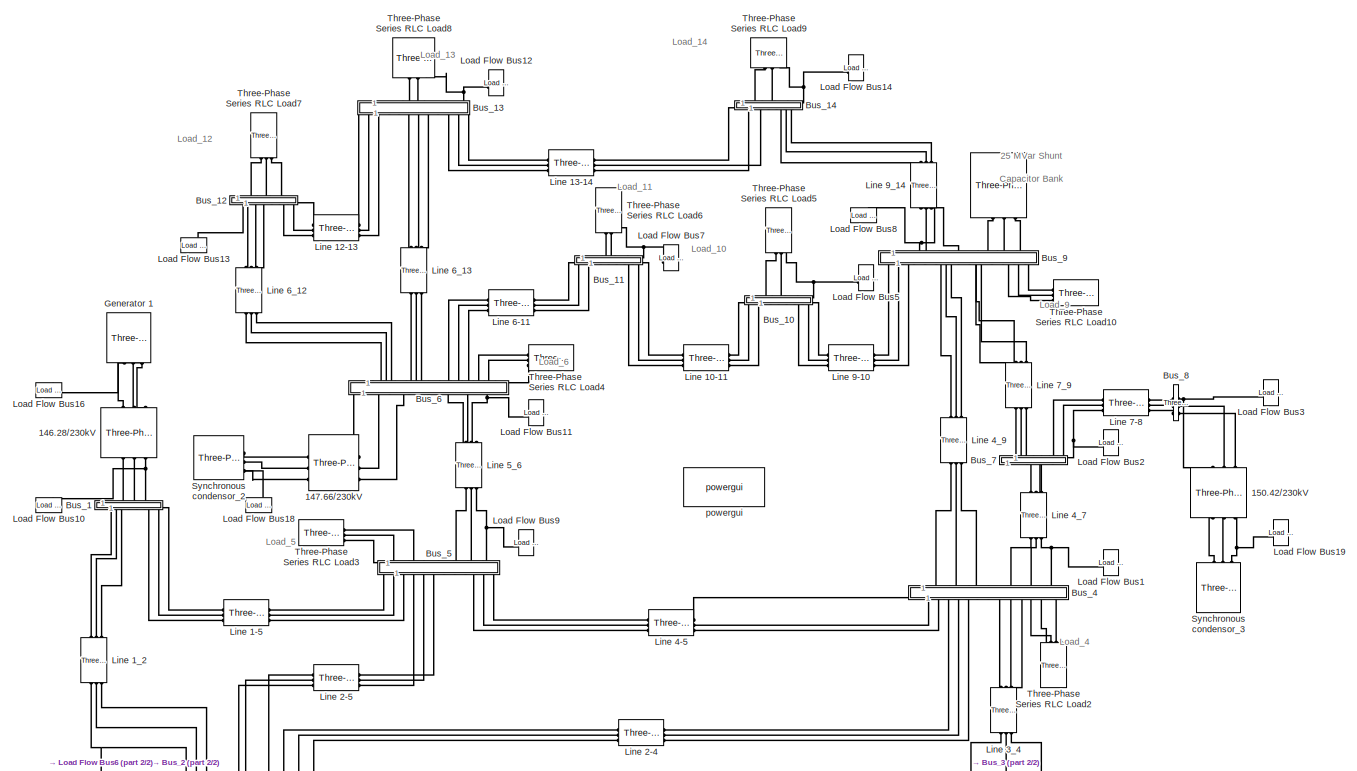
[diagram: root canvas - part 1/2, full width, middle band]
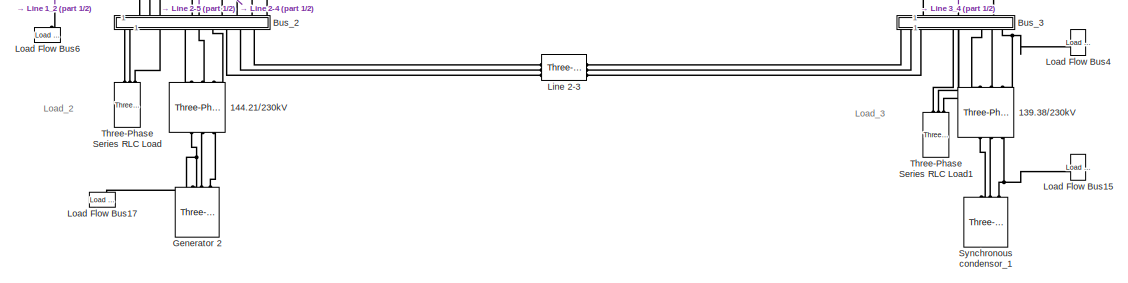
[diagram: root canvas - part 2/2, full width, bottom band]
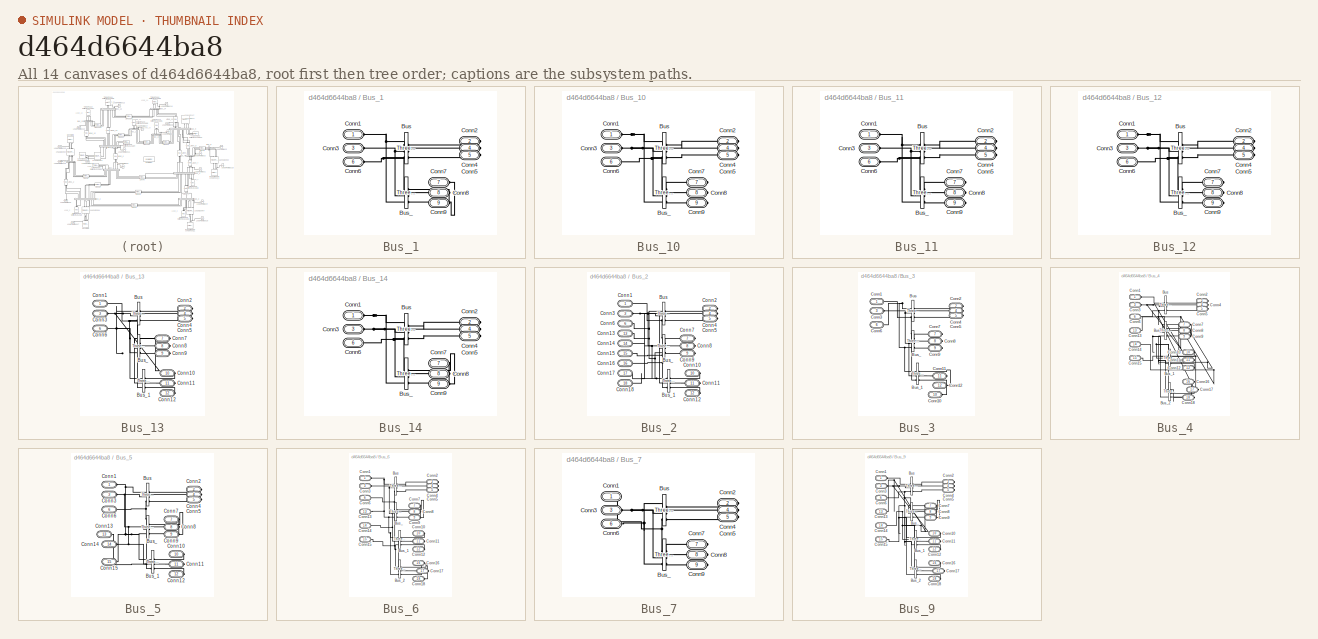
[diagram: thumbnail index - all 14 canvases of the model, root first then tree order]
MODEL slx_d464d6644ba8
KIND model
CONFIG AbsTol = auto
CONFIG EnableMultiTasking = off
CONFIG FixedStep = auto
CONFIG MaxStep = auto
CONFIG MinStep = auto
CONFIG RelTol = 1e-3
CONFIG SampleTimeConstraint = Unconstrained
CONFIG SolverName = VariableStepAuto
CONFIG StartTime = 0.0
CONFIG StopTime = 0.2
BLOCK [Reference]    REF=spsThreePhaseSeriesRLCLoadLib/Three-Phase
Series RLC Load
  AttributesFormatString = \n
  LibrarySourceBlock = sps_lib/Passives/Three-Phase\nSeries RLC Load
  NameLocation = right
  SourceBlock = spsThreePhaseSeriesRLCLoadLib/Three-Phase\nSeries RLC Load
  SourceType = Three-Phase Series RLC Load
BLOCK [Reference] 139.38//230kV  REF=spsThreePhaseTransformerTwoWindingsLib/Three-Phase
Transformer
(Two Windings)
  LibrarySourceBlock = sps_lib/Power Grid Elements/Three-Phase\nTransformer\n(Two Windings)
  NameLocation = right
  SourceBlock = spsThreePhaseTransformerTwoWindingsLib/Three-Phase\nTransformer\n(Two Windings)
  SourceType = Three-Phase Transformer (Two Windings)
BLOCK [Reference] 144.21//230kV  REF=spsThreePhaseTransformerTwoWindingsLib/Three-Phase
Transformer
(Two Windings)
  LibrarySourceBlock = sps_lib/Power Grid Elements/Three-Phase\nTransformer\n(Two Windings)
  NameLocation = right
  SourceBlock = spsThreePhaseTransformerTwoWindingsLib/Three-Phase\nTransformer\n(Two Windings)
  SourceType = Three-Phase Transformer (Two Windings)
BLOCK [Reference] 146.28//230kV  REF=spsThreePhaseTransformerTwoWindingsLib/Three-Phase
Transformer
(Two Windings)
  LibrarySourceBlock = sps_lib/Power Grid Elements/Three-Phase\nTransformer\n(Two Windings)
  NameLocation = left
  SourceBlock = spsThreePhaseTransformerTwoWindingsLib/Three-Phase\nTransformer\n(Two Windings)
  SourceType = Three-Phase Transformer (Two Windings)
BLOCK [Reference] 147.66//230kV  REF=spsThreePhaseTransformerTwoWindingsLib/Three-Phase
Transformer
(Two Windings)
  LibrarySourceBlock = sps_lib/Power Grid Elements/Three-Phase\nTransformer\n(Two Windings)
  SourceBlock = spsThreePhaseTransformerTwoWindingsLib/Three-Phase\nTransformer\n(Two Windings)
  SourceType = Three-Phase Transformer (Two Windings)
BLOCK [Reference] 150.42//230kV  REF=spsThreePhaseTransformerTwoWindingsLib/Three-Phase
Transformer
(Two Windings)
  LibrarySourceBlock = sps_lib/Power Grid Elements/Three-Phase\nTransformer\n(Two Windings)
  NameLocation = right
  SourceBlock = spsThreePhaseTransformerTwoWindingsLib/Three-Phase\nTransformer\n(Two Windings)
  SourceType = Three-Phase Transformer (Two Windings)
BLOCK [SubSystem] Bus_1
  NameLocation = left
BLOCK [Reference] Bus_1/Bus  REF=spsThreePhaseVIMeasurementLib/Three-Phase
V-I Measurement
  LibrarySourceBlock = sps_lib/Sensors and Measurements/Three-Phase\nV-I Measurement
  SourceBlock = spsThreePhaseVIMeasurementLib/Three-Phase\nV-I Measurement
  SourceType = Three-Phase VI Measurement
BLOCK [Reference] Bus_1/Bus_  REF=spsThreePhaseVIMeasurementLib/Three-Phase
V-I Measurement
  LibrarySourceBlock = sps_lib/Sensors and Measurements/Three-Phase\nV-I Measurement
  SourceBlock = spsThreePhaseVIMeasurementLib/Three-Phase\nV-I Measurement
  SourceType = Three-Phase VI Measurement
BLOCK [PMIOPort] Bus_1/Conn1
  Side = Left
BLOCK [PMIOPort] Bus_1/Conn2
  Port = 2
  Side = Right
BLOCK [PMIOPort] Bus_1/Conn3
  Port = 3
  Side = Left
BLOCK [PMIOPort] Bus_1/Conn4
  Port = 4
  Side = Right
BLOCK [PMIOPort] Bus_1/Conn5
  Port = 5
  Side = Right
BLOCK [PMIOPort] Bus_1/Conn6
  Port = 6
  Side = Left
BLOCK [PMIOPort] Bus_1/Conn7
  Port = 7
  Side = Right
BLOCK [PMIOPort] Bus_1/Conn8
  Port = 8
  Side = Right
BLOCK [PMIOPort] Bus_1/Conn9
  Port = 9
  Side = Right
BLOCK [SubSystem] Bus_10
  NameLocation = left
BLOCK [Reference] Bus_10/Bus  REF=spsThreePhaseVIMeasurementLib/Three-Phase
V-I Measurement
  LibrarySourceBlock = sps_lib/Sensors and Measurements/Three-Phase\nV-I Measurement
  SourceBlock = spsThreePhaseVIMeasurementLib/Three-Phase\nV-I Measurement
  SourceType = Three-Phase VI Measurement
BLOCK [Reference] Bus_10/Bus_  REF=spsThreePhaseVIMeasurementLib/Three-Phase
V-I Measurement
  LibrarySourceBlock = sps_lib/Sensors and Measurements/Three-Phase\nV-I Measurement
  SourceBlock = spsThreePhaseVIMeasurementLib/Three-Phase\nV-I Measurement
  SourceType = Three-Phase VI Measurement
BLOCK [PMIOPort] Bus_10/Conn1
  Side = Left
BLOCK [PMIOPort] Bus_10/Conn2
  Port = 2
  Side = Right
BLOCK [PMIOPort] Bus_10/Conn3
  Port = 3
  Side = Left
BLOCK [PMIOPort] Bus_10/Conn4
  Port = 4
  Side = Right
BLOCK [PMIOPort] Bus_10/Conn5
  Port = 5
  Side = Right
BLOCK [PMIOPort] Bus_10/Conn6
  Port = 6
  Side = Left
BLOCK [PMIOPort] Bus_10/Conn7
  Port = 7
  Side = Right
BLOCK [PMIOPort] Bus_10/Conn8
  Port = 8
  Side = Right
BLOCK [PMIOPort] Bus_10/Conn9
  Port = 9
  Side = Right
BLOCK [SubSystem] Bus_11
  NameLocation = left
BLOCK [Reference] Bus_11/Bus  REF=spsThreePhaseVIMeasurementLib/Three-Phase
V-I Measurement
  LibrarySourceBlock = sps_lib/Sensors and Measurements/Three-Phase\nV-I Measurement
  SourceBlock = spsThreePhaseVIMeasurementLib/Three-Phase\nV-I Measurement
  SourceType = Three-Phase VI Measurement
BLOCK [Reference] Bus_11/Bus_  REF=spsThreePhaseVIMeasurementLib/Three-Phase
V-I Measurement
  LibrarySourceBlock = sps_lib/Sensors and Measurements/Three-Phase\nV-I Measurement
  SourceBlock = spsThreePhaseVIMeasurementLib/Three-Phase\nV-I Measurement
  SourceType = Three-Phase VI Measurement
BLOCK [PMIOPort] Bus_11/Conn1
  Side = Left
BLOCK [PMIOPort] Bus_11/Conn2
  Port = 2
  Side = Right
BLOCK [PMIOPort] Bus_11/Conn3
  Port = 3
  Side = Left
BLOCK [PMIOPort] Bus_11/Conn4
  Port = 4
  Side = Right
BLOCK [PMIOPort] Bus_11/Conn5
  Port = 5
  Side = Right
BLOCK [PMIOPort] Bus_11/Conn6
  Port = 6
  Side = Left
BLOCK [PMIOPort] Bus_11/Conn7
  Port = 7
  Side = Right
BLOCK [PMIOPort] Bus_11/Conn8
  Port = 8
  Side = Right
BLOCK [PMIOPort] Bus_11/Conn9
  Port = 9
  Side = Right
BLOCK [SubSystem] Bus_12
  NameLocation = left
BLOCK [Reference] Bus_12/Bus  REF=spsThreePhaseVIMeasurementLib/Three-Phase
V-I Measurement
  LibrarySourceBlock = sps_lib/Sensors and Measurements/Three-Phase\nV-I Measurement
  SourceBlock = spsThreePhaseVIMeasurementLib/Three-Phase\nV-I Measurement
  SourceType = Three-Phase VI Measurement
BLOCK [Reference] Bus_12/Bus_  REF=spsThreePhaseVIMeasurementLib/Three-Phase
V-I Measurement
  LibrarySourceBlock = sps_lib/Sensors and Measurements/Three-Phase\nV-I Measurement
  SourceBlock = spsThreePhaseVIMeasurementLib/Three-Phase\nV-I Measurement
  SourceType = Three-Phase VI Measurement
BLOCK [PMIOPort] Bus_12/Conn1
  Side = Left
BLOCK [PMIOPort] Bus_12/Conn2
  Port = 2
  Side = Right
BLOCK [PMIOPort] Bus_12/Conn3
  Port = 3
  Side = Left
BLOCK [PMIOPort] Bus_12/Conn4
  Port = 4
  Side = Right
BLOCK [PMIOPort] Bus_12/Conn5
  Port = 5
  Side = Right
BLOCK [PMIOPort] Bus_12/Conn6
  Port = 6
  Side = Left
BLOCK [PMIOPort] Bus_12/Conn7
  Port = 7
  Side = Right
BLOCK [PMIOPort] Bus_12/Conn8
  Port = 8
  Side = Right
BLOCK [PMIOPort] Bus_12/Conn9
  Port = 9
  Side = Right
BLOCK [SubSystem] Bus_13
  NameLocation = left
BLOCK [Reference] Bus_13/Bus  REF=spsThreePhaseVIMeasurementLib/Three-Phase
V-I Measurement
  LibrarySourceBlock = sps_lib/Sensors and Measurements/Three-Phase\nV-I Measurement
  SourceBlock = spsThreePhaseVIMeasurementLib/Three-Phase\nV-I Measurement
  SourceType = Three-Phase VI Measurement
BLOCK [Reference] Bus_13/Bus_  REF=spsThreePhaseVIMeasurementLib/Three-Phase
V-I Measurement
  LibrarySourceBlock = sps_lib/Sensors and Measurements/Three-Phase\nV-I Measurement
  SourceBlock = spsThreePhaseVIMeasurementLib/Three-Phase\nV-I Measurement
  SourceType = Three-Phase VI Measurement
BLOCK [Reference] Bus_13/Bus_1  REF=spsThreePhaseVIMeasurementLib/Three-Phase
V-I Measurement
  LibrarySourceBlock = sps_lib/Sensors and Measurements/Three-Phase\nV-I Measurement
  SourceBlock = spsThreePhaseVIMeasurementLib/Three-Phase\nV-I Measurement
  SourceType = Three-Phase VI Measurement
BLOCK [PMIOPort] Bus_13/Conn1
  Side = Left
BLOCK [PMIOPort] Bus_13/Conn10
  Port = 10
  Side = Right
BLOCK [PMIOPort] Bus_13/Conn11
  Port = 11
  Side = Right
BLOCK [PMIOPort] Bus_13/Conn12
  Port = 12
  Side = Right
BLOCK [PMIOPort] Bus_13/Conn2
  Port = 2
  Side = Right
BLOCK [PMIOPort] Bus_13/Conn3
  Port = 3
  Side = Left
BLOCK [PMIOPort] Bus_13/Conn4
  Port = 4
  Side = Right
BLOCK [PMIOPort] Bus_13/Conn5
  Port = 5
  Side = Right
BLOCK [PMIOPort] Bus_13/Conn6
  Port = 6
  Side = Left
BLOCK [PMIOPort] Bus_13/Conn7
  Port = 7
  Side = Right
BLOCK [PMIOPort] Bus_13/Conn8
  Port = 8
  Side = Right
BLOCK [PMIOPort] Bus_13/Conn9
  Port = 9
  Side = Right
BLOCK [SubSystem] Bus_14
  NameLocation = left
BLOCK [Reference] Bus_14/Bus  REF=spsThreePhaseVIMeasurementLib/Three-Phase
V-I Measurement
  LibrarySourceBlock = sps_lib/Sensors and Measurements/Three-Phase\nV-I Measurement
  SourceBlock = spsThreePhaseVIMeasurementLib/Three-Phase\nV-I Measurement
  SourceType = Three-Phase VI Measurement
BLOCK [Reference] Bus_14/Bus_  REF=spsThreePhaseVIMeasurementLib/Three-Phase
V-I Measurement
  LibrarySourceBlock = sps_lib/Sensors and Measurements/Three-Phase\nV-I Measurement
  SourceBlock = spsThreePhaseVIMeasurementLib/Three-Phase\nV-I Measurement
  SourceType = Three-Phase VI Measurement
BLOCK [PMIOPort] Bus_14/Conn1
  Side = Left
BLOCK [PMIOPort] Bus_14/Conn2
  Port = 2
  Side = Right
BLOCK [PMIOPort] Bus_14/Conn3
  Port = 3
  Side = Left
BLOCK [PMIOPort] Bus_14/Conn4
  Port = 4
  Side = Right
BLOCK [PMIOPort] Bus_14/Conn5
  Port = 5
  Side = Right
BLOCK [PMIOPort] Bus_14/Conn6
  Port = 6
  Side = Left
BLOCK [PMIOPort] Bus_14/Conn7
  Port = 7
  Side = Right
BLOCK [PMIOPort] Bus_14/Conn8
  Port = 8
  Side = Right
BLOCK [PMIOPort] Bus_14/Conn9
  Port = 9
  Side = Right
BLOCK [SubSystem] Bus_2
  NameLocation = left
BLOCK [Reference] Bus_2/Bus  REF=spsThreePhaseVIMeasurementLib/Three-Phase
V-I Measurement
  LibrarySourceBlock = sps_lib/Sensors and Measurements/Three-Phase\nV-I Measurement
  SourceBlock = spsThreePhaseVIMeasurementLib/Three-Phase\nV-I Measurement
  SourceType = Three-Phase VI Measurement
BLOCK [Reference] Bus_2/Bus_  REF=spsThreePhaseVIMeasurementLib/Three-Phase
V-I Measurement
  LibrarySourceBlock = sps_lib/Sensors and Measurements/Three-Phase\nV-I Measurement
  SourceBlock = spsThreePhaseVIMeasurementLib/Three-Phase\nV-I Measurement
  SourceType = Three-Phase VI Measurement
BLOCK [Reference] Bus_2/Bus_1  REF=spsThreePhaseVIMeasurementLib/Three-Phase
V-I Measurement
  LibrarySourceBlock = sps_lib/Sensors and Measurements/Three-Phase\nV-I Measurement
  SourceBlock = spsThreePhaseVIMeasurementLib/Three-Phase\nV-I Measurement
  SourceType = Three-Phase VI Measurement
BLOCK [PMIOPort] Bus_2/Conn1
  Side = Left
BLOCK [PMIOPort] Bus_2/Conn10
  Port = 10
  Side = Right
BLOCK [PMIOPort] Bus_2/Conn11
  Port = 11
  Side = Right
BLOCK [PMIOPort] Bus_2/Conn12
  Port = 12
  Side = Right
BLOCK [PMIOPort] Bus_2/Conn13
  Port = 13
  Side = Left
BLOCK [PMIOPort] Bus_2/Conn14
  Port = 14
  Side = Left
BLOCK [PMIOPort] Bus_2/Conn15
  Port = 15
  Side = Left
BLOCK [PMIOPort] Bus_2/Conn16
  Port = 16
  Side = Left
BLOCK [PMIOPort] Bus_2/Conn17
  Port = 17
  Side = Left
BLOCK [PMIOPort] Bus_2/Conn18
  Port = 18
  Side = Left
BLOCK [PMIOPort] Bus_2/Conn2
  Port = 2
  Side = Right
BLOCK [PMIOPort] Bus_2/Conn3
  Port = 3
  Side = Left
BLOCK [PMIOPort] Bus_2/Conn4
  Port = 4
  Side = Right
BLOCK [PMIOPort] Bus_2/Conn5
  Port = 5
  Side = Right
BLOCK [PMIOPort] Bus_2/Conn6
  Port = 6
  Side = Left
BLOCK [PMIOPort] Bus_2/Conn7
  Port = 7
  Side = Right
BLOCK [PMIOPort] Bus_2/Conn8
  Port = 8
  Side = Right
BLOCK [PMIOPort] Bus_2/Conn9
  Port = 9
  Side = Right
BLOCK [SubSystem] Bus_3
  NameLocation = left
BLOCK [Reference] Bus_3/Bus  REF=spsThreePhaseVIMeasurementLib/Three-Phase
V-I Measurement
  LibrarySourceBlock = sps_lib/Sensors and Measurements/Three-Phase\nV-I Measurement
  SourceBlock = spsThreePhaseVIMeasurementLib/Three-Phase\nV-I Measurement
  SourceType = Three-Phase VI Measurement
BLOCK [Reference] Bus_3/Bus_  REF=spsThreePhaseVIMeasurementLib/Three-Phase
V-I Measurement
  LibrarySourceBlock = sps_lib/Sensors and Measurements/Three-Phase\nV-I Measurement
  SourceBlock = spsThreePhaseVIMeasurementLib/Three-Phase\nV-I Measurement
  SourceType = Three-Phase VI Measurement
BLOCK [Reference] Bus_3/Bus_1  REF=spsThreePhaseVIMeasurementLib/Three-Phase
V-I Measurement
  LibrarySourceBlock = sps_lib/Sensors and Measurements/Three-Phase\nV-I Measurement
  SourceBlock = spsThreePhaseVIMeasurementLib/Three-Phase\nV-I Measurement
  SourceType = Three-Phase VI Measurement
BLOCK [PMIOPort] Bus_3/Conn1
  Side = Left
BLOCK [PMIOPort] Bus_3/Conn10
  Port = 10
  Side = Right
BLOCK [PMIOPort] Bus_3/Conn11
  Port = 11
  Side = Right
BLOCK [PMIOPort] Bus_3/Conn12
  Port = 12
  Side = Right
BLOCK [PMIOPort] Bus_3/Conn2
  Port = 2
  Side = Right
BLOCK [PMIOPort] Bus_3/Conn3
  Port = 3
  Side = Left
BLOCK [PMIOPort] Bus_3/Conn4
  Port = 4
  Side = Right
BLOCK [PMIOPort] Bus_3/Conn5
  Port = 5
  Side = Right
BLOCK [PMIOPort] Bus_3/Conn6
  Port = 6
  Side = Left
BLOCK [PMIOPort] Bus_3/Conn7
  Port = 7
  Side = Right
BLOCK [PMIOPort] Bus_3/Conn8
  Port = 8
  Side = Right
BLOCK [PMIOPort] Bus_3/Conn9
  Port = 9
  Side = Right
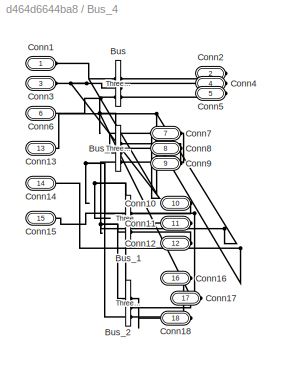
BLOCK [SubSystem] Bus_4
  NameLocation = left
BLOCK [Reference] Bus_4/Bus  REF=spsThreePhaseVIMeasurementLib/Three-Phase
V-I Measurement
  LibrarySourceBlock = sps_lib/Sensors and Measurements/Three-Phase\nV-I Measurement
  SourceBlock = spsThreePhaseVIMeasurementLib/Three-Phase\nV-I Measurement
  SourceType = Three-Phase VI Measurement
BLOCK [Reference] Bus_4/Bus_  REF=spsThreePhaseVIMeasurementLib/Three-Phase
V-I Measurement
  LibrarySourceBlock = sps_lib/Sensors and Measurements/Three-Phase\nV-I Measurement
  SourceBlock = spsThreePhaseVIMeasurementLib/Three-Phase\nV-I Measurement
  SourceType = Three-Phase VI Measurement
BLOCK [Reference] Bus_4/Bus_1  REF=spsThreePhaseVIMeasurementLib/Three-Phase
V-I Measurement
  LibrarySourceBlock = sps_lib/Sensors and Measurements/Three-Phase\nV-I Measurement
  SourceBlock = spsThreePhaseVIMeasurementLib/Three-Phase\nV-I Measurement
  SourceType = Three-Phase VI Measurement
BLOCK [Reference] Bus_4/Bus_2  REF=spsThreePhaseVIMeasurementLib/Three-Phase
V-I Measurement
  LibrarySourceBlock = sps_lib/Sensors and Measurements/Three-Phase\nV-I Measurement
  SourceBlock = spsThreePhaseVIMeasurementLib/Three-Phase\nV-I Measurement
  SourceType = Three-Phase VI Measurement
BLOCK [PMIOPort] Bus_4/Conn1
  Side = Left
BLOCK [PMIOPort] Bus_4/Conn10
  Port = 10
  Side = Right
BLOCK [PMIOPort] Bus_4/Conn11
  Port = 11
  Side = Right
BLOCK [PMIOPort] Bus_4/Conn12
  Port = 12
  Side = Right
BLOCK [PMIOPort] Bus_4/Conn13
  Port = 13
  Side = Left
BLOCK [PMIOPort] Bus_4/Conn14
  Port = 14
  Side = Left
BLOCK [PMIOPort] Bus_4/Conn15
  Port = 15
  Side = Left
BLOCK [PMIOPort] Bus_4/Conn16
  Port = 16
  Side = Right
BLOCK [PMIOPort] Bus_4/Conn17
  Port = 17
  Side = Right
BLOCK [PMIOPort] Bus_4/Conn18
  Port = 18
  Side = Right
BLOCK [PMIOPort] Bus_4/Conn2
  Port = 2
  Side = Right
BLOCK [PMIOPort] Bus_4/Conn3
  Port = 3
  Side = Left
BLOCK [PMIOPort] Bus_4/Conn4
  Port = 4
  Side = Right
BLOCK [PMIOPort] Bus_4/Conn5
  Port = 5
  Side = Right
BLOCK [PMIOPort] Bus_4/Conn6
  Port = 6
  Side = Left
BLOCK [PMIOPort] Bus_4/Conn7
  Port = 7
  Side = Right
BLOCK [PMIOPort] Bus_4/Conn8
  Port = 8
  Side = Right
BLOCK [PMIOPort] Bus_4/Conn9
  Port = 9
  Side = Right
BLOCK [SubSystem] Bus_5
  NameLocation = left
BLOCK [Reference] Bus_5/Bus  REF=spsThreePhaseVIMeasurementLib/Three-Phase
V-I Measurement
  LibrarySourceBlock = sps_lib/Sensors and Measurements/Three-Phase\nV-I Measurement
  SourceBlock = spsThreePhaseVIMeasurementLib/Three-Phase\nV-I Measurement
  SourceType = Three-Phase VI Measurement
BLOCK [Reference] Bus_5/Bus_  REF=spsThreePhaseVIMeasurementLib/Three-Phase
V-I Measurement
  LibrarySourceBlock = sps_lib/Sensors and Measurements/Three-Phase\nV-I Measurement
  SourceBlock = spsThreePhaseVIMeasurementLib/Three-Phase\nV-I Measurement
  SourceType = Three-Phase VI Measurement
BLOCK [Reference] Bus_5/Bus_1  REF=spsThreePhaseVIMeasurementLib/Three-Phase
V-I Measurement
  LibrarySourceBlock = sps_lib/Sensors and Measurements/Three-Phase\nV-I Measurement
  SourceBlock = spsThreePhaseVIMeasurementLib/Three-Phase\nV-I Measurement
  SourceType = Three-Phase VI Measurement
BLOCK [PMIOPort] Bus_5/Conn1
  Side = Left
BLOCK [PMIOPort] Bus_5/Conn10
  Port = 10
  Side = Right
BLOCK [PMIOPort] Bus_5/Conn11
  Port = 11
  Side = Right
BLOCK [PMIOPort] Bus_5/Conn12
  Port = 12
  Side = Right
BLOCK [PMIOPort] Bus_5/Conn13
  Port = 13
  Side = Left
BLOCK [PMIOPort] Bus_5/Conn14
  Port = 14
  Side = Left
BLOCK [PMIOPort] Bus_5/Conn15
  Port = 15
  Side = Left
BLOCK [PMIOPort] Bus_5/Conn2
  Port = 2
  Side = Right
BLOCK [PMIOPort] Bus_5/Conn3
  Port = 3
  Side = Left
BLOCK [PMIOPort] Bus_5/Conn4
  Port = 4
  Side = Right
BLOCK [PMIOPort] Bus_5/Conn5
  Port = 5
  Side = Right
BLOCK [PMIOPort] Bus_5/Conn6
  Port = 6
  Side = Left
BLOCK [PMIOPort] Bus_5/Conn7
  Port = 7
  Side = Right
BLOCK [PMIOPort] Bus_5/Conn8
  Port = 8
  Side = Right
BLOCK [PMIOPort] Bus_5/Conn9
  Port = 9
  Side = Right
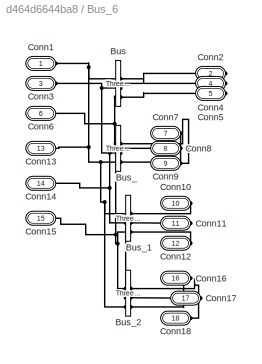
BLOCK [SubSystem] Bus_6
  NameLocation = right
BLOCK [Reference] Bus_6/Bus  REF=spsThreePhaseVIMeasurementLib/Three-Phase
V-I Measurement
  LibrarySourceBlock = sps_lib/Sensors and Measurements/Three-Phase\nV-I Measurement
  SourceBlock = spsThreePhaseVIMeasurementLib/Three-Phase\nV-I Measurement
  SourceType = Three-Phase VI Measurement
BLOCK [Reference] Bus_6/Bus_  REF=spsThreePhaseVIMeasurementLib/Three-Phase
V-I Measurement
  LibrarySourceBlock = sps_lib/Sensors and Measurements/Three-Phase\nV-I Measurement
  SourceBlock = spsThreePhaseVIMeasurementLib/Three-Phase\nV-I Measurement
  SourceType = Three-Phase VI Measurement
BLOCK [Reference] Bus_6/Bus_1  REF=spsThreePhaseVIMeasurementLib/Three-Phase
V-I Measurement
  LibrarySourceBlock = sps_lib/Sensors and Measurements/Three-Phase\nV-I Measurement
  SourceBlock = spsThreePhaseVIMeasurementLib/Three-Phase\nV-I Measurement
  SourceType = Three-Phase VI Measurement
BLOCK [Reference] Bus_6/Bus_2  REF=spsThreePhaseVIMeasurementLib/Three-Phase
V-I Measurement
  LibrarySourceBlock = sps_lib/Sensors and Measurements/Three-Phase\nV-I Measurement
  SourceBlock = spsThreePhaseVIMeasurementLib/Three-Phase\nV-I Measurement
  SourceType = Three-Phase VI Measurement
BLOCK [PMIOPort] Bus_6/Conn1
  Side = Left
BLOCK [PMIOPort] Bus_6/Conn10
  Port = 10
  Side = Right
BLOCK [PMIOPort] Bus_6/Conn11
  Port = 11
  Side = Right
BLOCK [PMIOPort] Bus_6/Conn12
  Port = 12
  Side = Right
BLOCK [PMIOPort] Bus_6/Conn13
  Port = 13
  Side = Left
BLOCK [PMIOPort] Bus_6/Conn14
  Port = 14
  Side = Left
BLOCK [PMIOPort] Bus_6/Conn15
  Port = 15
  Side = Left
BLOCK [PMIOPort] Bus_6/Conn16
  Port = 16
  Side = Right
BLOCK [PMIOPort] Bus_6/Conn17
  Port = 17
  Side = Right
BLOCK [PMIOPort] Bus_6/Conn18
  Port = 18
  Side = Right
BLOCK [PMIOPort] Bus_6/Conn2
  Port = 2
  Side = Right
BLOCK [PMIOPort] Bus_6/Conn3
  Port = 3
  Side = Left
BLOCK [PMIOPort] Bus_6/Conn4
  Port = 4
  Side = Right
BLOCK [PMIOPort] Bus_6/Conn5
  Port = 5
  Side = Right
BLOCK [PMIOPort] Bus_6/Conn6
  Port = 6
  Side = Left
BLOCK [PMIOPort] Bus_6/Conn7
  Port = 7
  Side = Right
BLOCK [PMIOPort] Bus_6/Conn8
  Port = 8
  Side = Right
BLOCK [PMIOPort] Bus_6/Conn9
  Port = 9
  Side = Right
BLOCK [SubSystem] Bus_7
  NameLocation = right
BLOCK [Reference] Bus_7/Bus  REF=spsThreePhaseVIMeasurementLib/Three-Phase
V-I Measurement
  LibrarySourceBlock = sps_lib/Sensors and Measurements/Three-Phase\nV-I Measurement
  SourceBlock = spsThreePhaseVIMeasurementLib/Three-Phase\nV-I Measurement
  SourceType = Three-Phase VI Measurement
BLOCK [Reference] Bus_7/Bus_  REF=spsThreePhaseVIMeasurementLib/Three-Phase
V-I Measurement
  LibrarySourceBlock = sps_lib/Sensors and Measurements/Three-Phase\nV-I Measurement
  SourceBlock = spsThreePhaseVIMeasurementLib/Three-Phase\nV-I Measurement
  SourceType = Three-Phase VI Measurement
BLOCK [PMIOPort] Bus_7/Conn1
  Side = Left
BLOCK [PMIOPort] Bus_7/Conn2
  Port = 2
  Side = Right
BLOCK [PMIOPort] Bus_7/Conn3
  Port = 3
  Side = Left
BLOCK [PMIOPort] Bus_7/Conn4
  Port = 4
  Side = Right
BLOCK [PMIOPort] Bus_7/Conn5
  Port = 5
  Side = Right
BLOCK [PMIOPort] Bus_7/Conn6
  Port = 6
  Side = Left
BLOCK [PMIOPort] Bus_7/Conn7
  Port = 7
  Side = Right
BLOCK [PMIOPort] Bus_7/Conn8
  Port = 8
  Side = Right
BLOCK [PMIOPort] Bus_7/Conn9
  Port = 9
  Side = Right
BLOCK [Reference] Bus_8  REF=spsThreePhaseVIMeasurementLib/Three-Phase
V-I Measurement
  LibrarySourceBlock = sps_lib/Sensors and Measurements/Three-Phase\nV-I Measurement
  SourceBlock = spsThreePhaseVIMeasurementLib/Three-Phase\nV-I Measurement
  SourceType = Three-Phase VI Measurement
BLOCK [SubSystem] Bus_9
  NameLocation = left
BLOCK [Reference] Bus_9/Bus  REF=spsThreePhaseVIMeasurementLib/Three-Phase
V-I Measurement
  LibrarySourceBlock = sps_lib/Sensors and Measurements/Three-Phase\nV-I Measurement
  SourceBlock = spsThreePhaseVIMeasurementLib/Three-Phase\nV-I Measurement
  SourceType = Three-Phase VI Measurement
BLOCK [Reference] Bus_9/Bus_  REF=spsThreePhaseVIMeasurementLib/Three-Phase
V-I Measurement
  LibrarySourceBlock = sps_lib/Sensors and Measurements/Three-Phase\nV-I Measurement
  SourceBlock = spsThreePhaseVIMeasurementLib/Three-Phase\nV-I Measurement
  SourceType = Three-Phase VI Measurement
BLOCK [Reference] Bus_9/Bus_1  REF=spsThreePhaseVIMeasurementLib/Three-Phase
V-I Measurement
  LibrarySourceBlock = sps_lib/Sensors and Measurements/Three-Phase\nV-I Measurement
  SourceBlock = spsThreePhaseVIMeasurementLib/Three-Phase\nV-I Measurement
  SourceType = Three-Phase VI Measurement
BLOCK [Reference] Bus_9/Bus_2  REF=spsThreePhaseVIMeasurementLib/Three-Phase
V-I Measurement
  LibrarySourceBlock = sps_lib/Sensors and Measurements/Three-Phase\nV-I Measurement
  SourceBlock = spsThreePhaseVIMeasurementLib/Three-Phase\nV-I Measurement
  SourceType = Three-Phase VI Measurement
BLOCK [PMIOPort] Bus_9/Conn1
  Side = Left
BLOCK [PMIOPort] Bus_9/Conn10
  Port = 10
  Side = Right
BLOCK [PMIOPort] Bus_9/Conn11
  Port = 11
  Side = Right
BLOCK [PMIOPort] Bus_9/Conn12
  Port = 12
  Side = Right
BLOCK [PMIOPort] Bus_9/Conn13
  Port = 13
  Side = Left
BLOCK [PMIOPort] Bus_9/Conn14
  Port = 14
  Side = Left
BLOCK [PMIOPort] Bus_9/Conn15
  Port = 15
  Side = Left
BLOCK [PMIOPort] Bus_9/Conn16
  Port = 16
  Side = Right
BLOCK [PMIOPort] Bus_9/Conn17
  Port = 17
  Side = Right
BLOCK [PMIOPort] Bus_9/Conn18
  Port = 18
  Side = Right
BLOCK [PMIOPort] Bus_9/Conn2
  Port = 2
  Side = Right
BLOCK [PMIOPort] Bus_9/Conn3
  Port = 3
  Side = Left
BLOCK [PMIOPort] Bus_9/Conn4
  Port = 4
  Side = Right
BLOCK [PMIOPort] Bus_9/Conn5
  Port = 5
  Side = Right
BLOCK [PMIOPort] Bus_9/Conn6
  Port = 6
  Side = Left
BLOCK [PMIOPort] Bus_9/Conn7
  Port = 7
  Side = Right
BLOCK [PMIOPort] Bus_9/Conn8
  Port = 8
  Side = Right
BLOCK [PMIOPort] Bus_9/Conn9
  Port = 9
  Side = Right
BLOCK [Reference] Generator 1  REF=spsThreePhaseSourceLib/Three-Phase Source
  LibrarySourceBlock = sps_lib/Sources/Three-Phase Source
  NameLocation = right
  SourceBlock = spsThreePhaseSourceLib/Three-Phase Source
  SourceType = Three-Phase Source
BLOCK [Reference] Generator 2  REF=spsThreePhaseSourceLib/Three-Phase Source
  LibrarySourceBlock = sps_lib/Sources/Three-Phase Source
  NameLocation = left
  SourceBlock = spsThreePhaseSourceLib/Three-Phase Source
  SourceType = Three-Phase Source
BLOCK [Reference] Line 1-5  REF=spsThreePhasePISectionLineLib/Three-Phase
PI Section Line
  AttributesFormatString = \n
  LibrarySourceBlock = sps_lib/Power Grid Elements/Three-Phase\nPI Section Line
  SourceBlock = spsThreePhasePISectionLineLib/Three-Phase\nPI Section Line
  SourceType = Three-Phase PI Section Line
BLOCK [Reference] Line 10-11  REF=spsThreePhasePISectionLineLib/Three-Phase
PI Section Line
  AttributesFormatString = \n
  LibrarySourceBlock = sps_lib/Power Grid Elements/Three-Phase\nPI Section Line
  SourceBlock = spsThreePhasePISectionLineLib/Three-Phase\nPI Section Line
  SourceType = Three-Phase PI Section Line
BLOCK [Reference] Line 12-13  REF=spsThreePhasePISectionLineLib/Three-Phase
PI Section Line
  AttributesFormatString = \n
  LibrarySourceBlock = sps_lib/Power Grid Elements/Three-Phase\nPI Section Line
  SourceBlock = spsThreePhasePISectionLineLib/Three-Phase\nPI Section Line
  SourceType = Three-Phase PI Section Line
BLOCK [Reference] Line 13-14  REF=spsThreePhasePISectionLineLib/Three-Phase
PI Section Line
  AttributesFormatString = \n
  LibrarySourceBlock = sps_lib/Power Grid Elements/Three-Phase\nPI Section Line
  SourceBlock = spsThreePhasePISectionLineLib/Three-Phase\nPI Section Line
  SourceType = Three-Phase PI Section Line
BLOCK [Reference] Line 1_2  REF=spsThreePhasePISectionLineLib/Three-Phase
PI Section Line
  AttributesFormatString = \n
  LibrarySourceBlock = sps_lib/Power Grid Elements/Three-Phase\nPI Section Line
  NameLocation = left
  SourceBlock = spsThreePhasePISectionLineLib/Three-Phase\nPI Section Line
  SourceType = Three-Phase PI Section Line
BLOCK [Reference] Line 2-3  REF=spsThreePhasePISectionLineLib/Three-Phase
PI Section Line
  AttributesFormatString = \n
  LibrarySourceBlock = sps_lib/Power Grid Elements/Three-Phase\nPI Section Line
  SourceBlock = spsThreePhasePISectionLineLib/Three-Phase\nPI Section Line
  SourceType = Three-Phase PI Section Line
BLOCK [Reference] Line 2-4  REF=spsThreePhasePISectionLineLib/Three-Phase
PI Section Line
  AttributesFormatString = \n
  LibrarySourceBlock = sps_lib/Power Grid Elements/Three-Phase\nPI Section Line
  SourceBlock = spsThreePhasePISectionLineLib/Three-Phase\nPI Section Line
  SourceType = Three-Phase PI Section Line
BLOCK [Reference] Line 2-5  REF=spsThreePhasePISectionLineLib/Three-Phase
PI Section Line
  AttributesFormatString = \n
  LibrarySourceBlock = sps_lib/Power Grid Elements/Three-Phase\nPI Section Line
  SourceBlock = spsThreePhasePISectionLineLib/Three-Phase\nPI Section Line
  SourceType = Three-Phase PI Section Line
BLOCK [Reference] Line 3_4  REF=spsThreePhasePISectionLineLib/Three-Phase
PI Section Line
  AttributesFormatString = \n
  LibrarySourceBlock = sps_lib/Power Grid Elements/Three-Phase\nPI Section Line
  NameLocation = right
  SourceBlock = spsThreePhasePISectionLineLib/Three-Phase\nPI Section Line
  SourceType = Three-Phase PI Section Line
BLOCK [Reference] Line 4-5  REF=spsThreePhasePISectionLineLib/Three-Phase
PI Section Line
  AttributesFormatString = \n
  LibrarySourceBlock = sps_lib/Power Grid Elements/Three-Phase\nPI Section Line
  SourceBlock = spsThreePhasePISectionLineLib/Three-Phase\nPI Section Line
  SourceType = Three-Phase PI Section Line
BLOCK [Reference] Line 4_7  REF=spsThreePhasePISectionLineLib/Three-Phase
PI Section Line
  AttributesFormatString = \n
  LibrarySourceBlock = sps_lib/Power Grid Elements/Three-Phase\nPI Section Line
  NameLocation = left
  SourceBlock = spsThreePhasePISectionLineLib/Three-Phase\nPI Section Line
  SourceType = Three-Phase PI Section Line
BLOCK [Reference] Line 4_9  REF=spsThreePhasePISectionLineLib/Three-Phase
PI Section Line
  AttributesFormatString = \n
  LibrarySourceBlock = sps_lib/Power Grid Elements/Three-Phase\nPI Section Line
  NameLocation = left
  SourceBlock = spsThreePhasePISectionLineLib/Three-Phase\nPI Section Line
  SourceType = Three-Phase PI Section Line
BLOCK [Reference] Line 5_6  REF=spsThreePhasePISectionLineLib/Three-Phase
PI Section Line
  AttributesFormatString = \n
  LibrarySourceBlock = sps_lib/Power Grid Elements/Three-Phase\nPI Section Line
  NameLocation = left
  SourceBlock = spsThreePhasePISectionLineLib/Three-Phase\nPI Section Line
  SourceType = Three-Phase PI Section Line
BLOCK [Reference] Line 6-11  REF=spsThreePhasePISectionLineLib/Three-Phase
PI Section Line
  AttributesFormatString = \n
  LibrarySourceBlock = sps_lib/Power Grid Elements/Three-Phase\nPI Section Line
  SourceBlock = spsThreePhasePISectionLineLib/Three-Phase\nPI Section Line
  SourceType = Three-Phase PI Section Line
BLOCK [Reference] Line 6_12  REF=spsThreePhasePISectionLineLib/Three-Phase
PI Section Line
  AttributesFormatString = \n
  LibrarySourceBlock = sps_lib/Power Grid Elements/Three-Phase\nPI Section Line
  NameLocation = left
  SourceBlock = spsThreePhasePISectionLineLib/Three-Phase\nPI Section Line
  SourceType = Three-Phase PI Section Line
BLOCK [Reference] Line 6_13  REF=spsThreePhasePISectionLineLib/Three-Phase
PI Section Line
  AttributesFormatString = \n
  LibrarySourceBlock = sps_lib/Power Grid Elements/Three-Phase\nPI Section Line
  NameLocation = left
  SourceBlock = spsThreePhasePISectionLineLib/Three-Phase\nPI Section Line
  SourceType = Three-Phase PI Section Line
BLOCK [Reference] Line 7-8  REF=spsThreePhasePISectionLineLib/Three-Phase
PI Section Line
  AttributesFormatString = \n
  LibrarySourceBlock = sps_lib/Power Grid Elements/Three-Phase\nPI Section Line
  SourceBlock = spsThreePhasePISectionLineLib/Three-Phase\nPI Section Line
  SourceType = Three-Phase PI Section Line
BLOCK [Reference] Line 7_9  REF=spsThreePhasePISectionLineLib/Three-Phase
PI Section Line
  AttributesFormatString = \n
  LibrarySourceBlock = sps_lib/Power Grid Elements/Three-Phase\nPI Section Line
  NameLocation = left
  SourceBlock = spsThreePhasePISectionLineLib/Three-Phase\nPI Section Line
  SourceType = Three-Phase PI Section Line
BLOCK [Reference] Line 9-10  REF=spsThreePhasePISectionLineLib/Three-Phase
PI Section Line
  AttributesFormatString = \n
  LibrarySourceBlock = sps_lib/Power Grid Elements/Three-Phase\nPI Section Line
  SourceBlock = spsThreePhasePISectionLineLib/Three-Phase\nPI Section Line
  SourceType = Three-Phase PI Section Line
BLOCK [Reference] Line 9_14  REF=spsThreePhasePISectionLineLib/Three-Phase
PI Section Line
  AttributesFormatString = \n
  LibrarySourceBlock = sps_lib/Power Grid Elements/Three-Phase\nPI Section Line
  NameLocation = left
  SourceBlock = spsThreePhasePISectionLineLib/Three-Phase\nPI Section Line
  SourceType = Three-Phase PI Section Line
BLOCK [Reference] Load Flow Bus1  REF=spsLoadFlowBusLib/Load Flow Bus
  AttributesFormatString = %<ID>\n%<Vbase>V\n%<VLF>pu\n%<angleLF>deg.
  LibrarySourceBlock = sps_lib/Utilities/Load Flow Bus
  SourceBlock = spsLoadFlowBusLib/Load Flow Bus
  SourceType = Load Flow Bus
BLOCK [Reference] Load Flow Bus10  REF=spsLoadFlowBusLib/Load Flow Bus
  AttributesFormatString = %<ID>\n%<Vbase>V\n%<VLF>pu\n%<angleLF>deg.
  LibrarySourceBlock = sps_lib/Utilities/Load Flow Bus
  NameLocation = left
  SourceBlock = spsLoadFlowBusLib/Load Flow Bus
  SourceType = Load Flow Bus
BLOCK [Reference] Load Flow Bus11  REF=spsLoadFlowBusLib/Load Flow Bus
  AttributesFormatString = %<ID>\n%<Vbase>V\n%<VLF>pu\n%<angleLF>deg.
  LibrarySourceBlock = sps_lib/Utilities/Load Flow Bus
  SourceBlock = spsLoadFlowBusLib/Load Flow Bus
  SourceType = Load Flow Bus
BLOCK [Reference] Load Flow Bus12  REF=spsLoadFlowBusLib/Load Flow Bus
  AttributesFormatString = %<ID>\n%<Vbase>V\n%<VLF>pu\n%<angleLF>deg.
  LibrarySourceBlock = sps_lib/Utilities/Load Flow Bus
  SourceBlock = spsLoadFlowBusLib/Load Flow Bus
  SourceType = Load Flow Bus
BLOCK [Reference] Load Flow Bus13  REF=spsLoadFlowBusLib/Load Flow Bus
  AttributesFormatString = %<ID>\n%<Vbase>V\n%<VLF>pu\n%<angleLF>deg.
  LibrarySourceBlock = sps_lib/Utilities/Load Flow Bus
  NameLocation = left
  SourceBlock = spsLoadFlowBusLib/Load Flow Bus
  SourceType = Load Flow Bus
BLOCK [Reference] Load Flow Bus14  REF=spsLoadFlowBusLib/Load Flow Bus
  AttributesFormatString = %<ID>\n%<Vbase>V\n%<VLF>pu\n%<angleLF>deg.
  LibrarySourceBlock = sps_lib/Utilities/Load Flow Bus
  SourceBlock = spsLoadFlowBusLib/Load Flow Bus
  SourceType = Load Flow Bus
BLOCK [Reference] Load Flow Bus15  REF=spsLoadFlowBusLib/Load Flow Bus
  AttributesFormatString = %<ID>\n%<Vbase>V\n%<VLF>pu\n%<angleLF>deg.
  LibrarySourceBlock = sps_lib/Utilities/Load Flow Bus
  SourceBlock = spsLoadFlowBusLib/Load Flow Bus
  SourceType = Load Flow Bus
BLOCK [Reference] Load Flow Bus16  REF=spsLoadFlowBusLib/Load Flow Bus
  AttributesFormatString = %<ID>\n%<Vbase>V\n%<VLF>pu\n%<angleLF>deg.
  LibrarySourceBlock = sps_lib/Utilities/Load Flow Bus
  NameLocation = left
  SourceBlock = spsLoadFlowBusLib/Load Flow Bus
  SourceType = Load Flow Bus
BLOCK [Reference] Load Flow Bus17  REF=spsLoadFlowBusLib/Load Flow Bus
  AttributesFormatString = %<ID>\n%<Vbase>V\n%<VLF>pu\n%<angleLF>deg.
  LibrarySourceBlock = sps_lib/Utilities/Load Flow Bus
  NameLocation = left
  SourceBlock = spsLoadFlowBusLib/Load Flow Bus
  SourceType = Load Flow Bus
BLOCK [Reference] Load Flow Bus18  REF=spsLoadFlowBusLib/Load Flow Bus
  AttributesFormatString = %<ID>\n%<Vbase>V\n%<VLF>pu\n%<angleLF>deg.
  LibrarySourceBlock = sps_lib/Utilities/Load Flow Bus
  NameLocation = left
  SourceBlock = spsLoadFlowBusLib/Load Flow Bus
  SourceType = Load Flow Bus
BLOCK [Reference] Load Flow Bus19  REF=spsLoadFlowBusLib/Load Flow Bus
  AttributesFormatString = %<ID>\n%<Vbase>V\n%<VLF>pu\n%<angleLF>deg.
  LibrarySourceBlock = sps_lib/Utilities/Load Flow Bus
  SourceBlock = spsLoadFlowBusLib/Load Flow Bus
  SourceType = Load Flow Bus
BLOCK [Reference] Load Flow Bus2  REF=spsLoadFlowBusLib/Load Flow Bus
  AttributesFormatString = %<ID>\n%<Vbase>V\n%<VLF>pu\n%<angleLF>deg.
  LibrarySourceBlock = sps_lib/Utilities/Load Flow Bus
  SourceBlock = spsLoadFlowBusLib/Load Flow Bus
  SourceType = Load Flow Bus
BLOCK [Reference] Load Flow Bus3  REF=spsLoadFlowBusLib/Load Flow Bus
  AttributesFormatString = %<ID>\n%<Vbase>V\n%<VLF>pu\n%<angleLF>deg.
  LibrarySourceBlock = sps_lib/Utilities/Load Flow Bus
  SourceBlock = spsLoadFlowBusLib/Load Flow Bus
  SourceType = Load Flow Bus
BLOCK [Reference] Load Flow Bus4  REF=spsLoadFlowBusLib/Load Flow Bus
  AttributesFormatString = %<ID>\n%<Vbase>V\n%<VLF>pu\n%<angleLF>deg.
  LibrarySourceBlock = sps_lib/Utilities/Load Flow Bus
  SourceBlock = spsLoadFlowBusLib/Load Flow Bus
  SourceType = Load Flow Bus
BLOCK [Reference] Load Flow Bus5  REF=spsLoadFlowBusLib/Load Flow Bus
  AttributesFormatString = %<ID>\n%<Vbase>V\n%<VLF>pu\n%<angleLF>deg.
  LibrarySourceBlock = sps_lib/Utilities/Load Flow Bus
  SourceBlock = spsLoadFlowBusLib/Load Flow Bus
  SourceType = Load Flow Bus
BLOCK [Reference] Load Flow Bus6  REF=spsLoadFlowBusLib/Load Flow Bus
  AttributesFormatString = %<ID>\n%<Vbase>V\n%<VLF>pu\n%<angleLF>deg.
  LibrarySourceBlock = sps_lib/Utilities/Load Flow Bus
  NameLocation = left
  SourceBlock = spsLoadFlowBusLib/Load Flow Bus
  SourceType = Load Flow Bus
BLOCK [Reference] Load Flow Bus7  REF=spsLoadFlowBusLib/Load Flow Bus
  AttributesFormatString = %<ID>\n%<Vbase>V\n%<VLF>pu\n%<angleLF>deg.
  LibrarySourceBlock = sps_lib/Utilities/Load Flow Bus
  SourceBlock = spsLoadFlowBusLib/Load Flow Bus
  SourceType = Load Flow Bus
BLOCK [Reference] Load Flow Bus8  REF=spsLoadFlowBusLib/Load Flow Bus
  AttributesFormatString = %<ID>\n%<Vbase>V\n%<VLF>pu\n%<angleLF>deg.
  LibrarySourceBlock = sps_lib/Utilities/Load Flow Bus
  NameLocation = left
  SourceBlock = spsLoadFlowBusLib/Load Flow Bus
  SourceType = Load Flow Bus
BLOCK [Reference] Load Flow Bus9  REF=spsLoadFlowBusLib/Load Flow Bus
  AttributesFormatString = %<ID>\n%<Vbase>V\n%<VLF>pu\n%<angleLF>deg.
  LibrarySourceBlock = sps_lib/Utilities/Load Flow Bus
  SourceBlock = spsLoadFlowBusLib/Load Flow Bus
  SourceType = Load Flow Bus
BLOCK [Reference] Synchronous condensor_1  REF=spsThreePhaseSourceLib/Three-Phase Source
  LibrarySourceBlock = sps_lib/Sources/Three-Phase Source
  NameLocation = left
  SourceBlock = spsThreePhaseSourceLib/Three-Phase Source
  SourceType = Three-Phase Source
BLOCK [Reference] Synchronous condensor_2  REF=spsThreePhaseSourceLib/Three-Phase Source
  LibrarySourceBlock = sps_lib/Sources/Three-Phase Source
  NameLocation = top
  SourceBlock = spsThreePhaseSourceLib/Three-Phase Source
  SourceType = Three-Phase Source
BLOCK [Reference] Synchronous condensor_3  REF=spsThreePhaseSourceLib/Three-Phase Source
  LibrarySourceBlock = sps_lib/Sources/Three-Phase Source
  NameLocation = left
  SourceBlock = spsThreePhaseSourceLib/Three-Phase Source
  SourceType = Three-Phase Source
BLOCK [Reference] Three-Phase Series RLC Load  REF=spsThreePhaseSeriesRLCLoadLib/Three-Phase
Series RLC Load
  AttributesFormatString = \n
  LibrarySourceBlock = sps_lib/Passives/Three-Phase\nSeries RLC Load
  NameLocation = left
  SourceBlock = spsThreePhaseSeriesRLCLoadLib/Three-Phase\nSeries RLC Load
  SourceType = Three-Phase Series RLC Load
BLOCK [Reference] Three-Phase Series RLC Load1  REF=spsThreePhaseSeriesRLCLoadLib/Three-Phase
Series RLC Load
  AttributesFormatString = \n
  LibrarySourceBlock = sps_lib/Passives/Three-Phase\nSeries RLC Load
  NameLocation = left
  SourceBlock = spsThreePhaseSeriesRLCLoadLib/Three-Phase\nSeries RLC Load
  SourceType = Three-Phase Series RLC Load
BLOCK [Reference] Three-Phase Series RLC Load10  REF=spsThreePhaseSeriesRLCLoadLib/Three-Phase
Series RLC Load
  AttributesFormatString = \n
  LibrarySourceBlock = sps_lib/Passives/Three-Phase\nSeries RLC Load
  NameLocation = top
  SourceBlock = spsThreePhaseSeriesRLCLoadLib/Three-Phase\nSeries RLC Load
  SourceType = Three-Phase Series RLC Load
BLOCK [Reference] Three-Phase Series RLC Load2  REF=spsThreePhaseSeriesRLCLoadLib/Three-Phase
Series RLC Load
  AttributesFormatString = \n
  LibrarySourceBlock = sps_lib/Passives/Three-Phase\nSeries RLC Load
  NameLocation = right
  SourceBlock = spsThreePhaseSeriesRLCLoadLib/Three-Phase\nSeries RLC Load
  SourceType = Three-Phase Series RLC Load
BLOCK [Reference] Three-Phase Series RLC Load3  REF=spsThreePhaseSeriesRLCLoadLib/Three-Phase
Series RLC Load
  AttributesFormatString = \n
  LibrarySourceBlock = sps_lib/Passives/Three-Phase\nSeries RLC Load
  SourceBlock = spsThreePhaseSeriesRLCLoadLib/Three-Phase\nSeries RLC Load
  SourceType = Three-Phase Series RLC Load
BLOCK [Reference] Three-Phase Series RLC Load4  REF=spsThreePhaseSeriesRLCLoadLib/Three-Phase
Series RLC Load
  AttributesFormatString = \n
  LibrarySourceBlock = sps_lib/Passives/Three-Phase\nSeries RLC Load
  NameLocation = top
  SourceBlock = spsThreePhaseSeriesRLCLoadLib/Three-Phase\nSeries RLC Load
  SourceType = Three-Phase Series RLC Load
BLOCK [Reference] Three-Phase Series RLC Load5  REF=spsThreePhaseSeriesRLCLoadLib/Three-Phase
Series RLC Load
  AttributesFormatString = \n
  LibrarySourceBlock = sps_lib/Passives/Three-Phase\nSeries RLC Load
  NameLocation = left
  SourceBlock = spsThreePhaseSeriesRLCLoadLib/Three-Phase\nSeries RLC Load
  SourceType = Three-Phase Series RLC Load
BLOCK [Reference] Three-Phase Series RLC Load6  REF=spsThreePhaseSeriesRLCLoadLib/Three-Phase
Series RLC Load
  AttributesFormatString = \n
  LibrarySourceBlock = sps_lib/Passives/Three-Phase\nSeries RLC Load
  NameLocation = left
  SourceBlock = spsThreePhaseSeriesRLCLoadLib/Three-Phase\nSeries RLC Load
  SourceType = Three-Phase Series RLC Load
BLOCK [Reference] Three-Phase Series RLC Load7  REF=spsThreePhaseSeriesRLCLoadLib/Three-Phase
Series RLC Load
  AttributesFormatString = \n
  LibrarySourceBlock = sps_lib/Passives/Three-Phase\nSeries RLC Load
  NameLocation = left
  SourceBlock = spsThreePhaseSeriesRLCLoadLib/Three-Phase\nSeries RLC Load
  SourceType = Three-Phase Series RLC Load
BLOCK [Reference] Three-Phase Series RLC Load8  REF=spsThreePhaseSeriesRLCLoadLib/Three-Phase
Series RLC Load
  AttributesFormatString = \n
  LibrarySourceBlock = sps_lib/Passives/Three-Phase\nSeries RLC Load
  NameLocation = left
  SourceBlock = spsThreePhaseSeriesRLCLoadLib/Three-Phase\nSeries RLC Load
  SourceType = Three-Phase Series RLC Load
BLOCK [Reference] Three-Phase Series RLC Load9  REF=spsThreePhaseSeriesRLCLoadLib/Three-Phase
Series RLC Load
  AttributesFormatString = \n
  LibrarySourceBlock = sps_lib/Passives/Three-Phase\nSeries RLC Load
  NameLocation = left
  SourceBlock = spsThreePhaseSeriesRLCLoadLib/Three-Phase\nSeries RLC Load
  SourceType = Three-Phase Series RLC Load
BLOCK [Reference] powergui  REF=spspowerguiLib/powergui
  LibrarySourceBlock = sps_lib/powergui
  Priority = 1
  SourceBlock = spspowerguiLib/powergui
  SourceType = PSB option menu block
ANNOTATION (root): 25 MVar Shunt Capacitor Bank
ANNOTATION (root): Load_10
ANNOTATION (root): Load_11
ANNOTATION (root): Load_12
ANNOTATION (root): Load_13
ANNOTATION (root): Load_14
ANNOTATION (root): Load_2
ANNOTATION (root): Load_3
ANNOTATION (root): Load_4
ANNOTATION (root): Load_5
ANNOTATION (root): Load_6
ANNOTATION (root): Load_9
PLINE  :LConn1 -- Bus_9:LConn4
PLINE  :LConn2 -- Bus_9:LConn5
PLINE  :LConn3 -- Bus_9:LConn6
PLINE 139.38//230kV:LConn1 -- Synchronous condensor_1:RConn1
PLINE 139.38//230kV:LConn2 -- Synchronous condensor_1:RConn2
PNET net1: 139.38//230kV:LConn3 -- Load Flow Bus15:LConn1 -- Synchronous condensor_1:RConn3
PLINE 139.38//230kV:RConn1 -- Bus_3:RConn7
PLINE 139.38//230kV:RConn2 -- Bus_3:RConn8
PNET net2: 139.38//230kV:RConn3 -- Bus_3:RConn9 -- Load Flow Bus4:LConn1
PNET net3: 144.21//230kV:LConn1 -- Generator 2:RConn1 -- Load Flow Bus17:LConn1
PLINE 144.21//230kV:LConn2 -- Generator 2:RConn2
PLINE 144.21//230kV:LConn3 -- Generator 2:RConn3
PLINE 144.21//230kV:RConn1 -- Bus_2:RConn4
PLINE 144.21//230kV:RConn2 -- Bus_2:RConn5
PLINE 144.21//230kV:RConn3 -- Bus_2:RConn6
PLINE 146.28//230kV:LConn1 -- Generator 1:RConn1
PLINE 146.28//230kV:LConn2 -- Generator 1:RConn2
PNET net4: 146.28//230kV:LConn3 -- Generator 1:RConn3 -- Load Flow Bus16:LConn1
PLINE 146.28//230kV:RConn1 -- Bus_1:LConn3
PLINE 146.28//230kV:RConn2 -- Bus_1:LConn2
PNET net5: 146.28//230kV:RConn3 -- Bus_1:LConn1 -- Load Flow Bus10:LConn1
PLINE 147.66//230kV:LConn1 -- Synchronous condensor_2:RConn1
PLINE 147.66//230kV:LConn2 -- Synchronous condensor_2:RConn2
PNET net6: 147.66//230kV:LConn3 -- Load Flow Bus18:LConn1 -- Synchronous condensor_2:RConn3
PLINE 147.66//230kV:RConn1 -- Bus_6:LConn1
PLINE 147.66//230kV:RConn2 -- Bus_6:LConn2
PLINE 147.66//230kV:RConn3 -- Bus_6:LConn3
PLINE 150.42//230kV:LConn1 -- Synchronous condensor_3:RConn1
PLINE 150.42//230kV:LConn2 -- Synchronous condensor_3:RConn2
PNET net7: 150.42//230kV:LConn3 -- Load Flow Bus19:LConn1 -- Synchronous condensor_3:RConn3
PNET net8: 150.42//230kV:RConn1 -- Bus_8:RConn1 -- Load Flow Bus3:LConn1
PLINE 150.42//230kV:RConn2 -- Bus_8:RConn2
PLINE 150.42//230kV:RConn3 -- Bus_8:RConn3
PNET net9: Bus_1/Bus:LConn1 -- Bus_1/Bus_:LConn3 -- Bus_1/Conn1:RConn1
PNET net10: Bus_1/Bus:LConn2 -- Bus_1/Bus_:LConn2 -- Bus_1/Conn3:RConn1
PNET net11: Bus_1/Bus:LConn3 -- Bus_1/Bus_:LConn1 -- Bus_1/Conn6:RConn1
PLINE Bus_1/Bus:RConn1 -- Bus_1/Conn5:RConn1
PLINE Bus_1/Bus:RConn2 -- Bus_1/Conn4:RConn1
PLINE Bus_1/Bus:RConn3 -- Bus_1/Conn2:RConn1
PLINE Bus_1/Bus_:RConn1 -- Bus_1/Conn9:RConn1
PLINE Bus_1/Bus_:RConn2 -- Bus_1/Conn8:RConn1
PLINE Bus_1/Bus_:RConn3 -- Bus_1/Conn7:RConn1
PNET net12: Bus_10/Bus:LConn1 -- Bus_10/Bus_:LConn3 -- Bus_10/Conn1:RConn1
PNET net13: Bus_10/Bus:LConn2 -- Bus_10/Bus_:LConn2 -- Bus_10/Conn3:RConn1
PNET net14: Bus_10/Bus:LConn3 -- Bus_10/Bus_:LConn1 -- Bus_10/Conn6:RConn1
PLINE Bus_10/Bus:RConn1 -- Bus_10/Conn2:RConn1
PLINE Bus_10/Bus:RConn2 -- Bus_10/Conn4:RConn1
PLINE Bus_10/Bus:RConn3 -- Bus_10/Conn5:RConn1
PLINE Bus_10/Bus_:RConn1 -- Bus_10/Conn7:RConn1
PLINE Bus_10/Bus_:RConn2 -- Bus_10/Conn8:RConn1
PLINE Bus_10/Bus_:RConn3 -- Bus_10/Conn9:RConn1
PLINE Bus_10:LConn1 -- Three-Phase Series RLC Load5:LConn1
PLINE Bus_10:LConn2 -- Three-Phase Series RLC Load5:LConn2
PNET net15: Bus_10:LConn3 -- Load Flow Bus5:LConn1 -- Three-Phase Series RLC Load5:LConn3
PLINE Bus_10:RConn1 -- Line 10-11:RConn1
PLINE Bus_10:RConn2 -- Line 10-11:RConn2
PLINE Bus_10:RConn3 -- Line 10-11:RConn3
PLINE Bus_10:RConn4 -- Line 9-10:LConn3
PLINE Bus_10:RConn5 -- Line 9-10:LConn2
PLINE Bus_10:RConn6 -- Line 9-10:LConn1
PNET net16: Bus_11/Bus:LConn1 -- Bus_11/Bus_:LConn3 -- Bus_11/Conn1:RConn1
PNET net17: Bus_11/Bus:LConn2 -- Bus_11/Bus_:LConn2 -- Bus_11/Conn3:RConn1
PNET net18: Bus_11/Bus:LConn3 -- Bus_11/Bus_:LConn1 -- Bus_11/Conn6:RConn1
PLINE Bus_11/Bus:RConn1 -- Bus_11/Conn2:RConn1
PLINE Bus_11/Bus:RConn2 -- Bus_11/Conn4:RConn1
PLINE Bus_11/Bus:RConn3 -- Bus_11/Conn5:RConn1
PLINE Bus_11/Bus_:RConn1 -- Bus_11/Conn7:RConn1
PLINE Bus_11/Bus_:RConn2 -- Bus_11/Conn8:RConn1
PLINE Bus_11/Bus_:RConn3 -- Bus_11/Conn9:RConn1
PLINE Bus_11:LConn1 -- Three-Phase Series RLC Load6:LConn1
PLINE Bus_11:LConn2 -- Three-Phase Series RLC Load6:LConn2
PNET net19: Bus_11:LConn3 -- Load Flow Bus7:LConn1 -- Three-Phase Series RLC Load6:LConn3
PLINE Bus_11:RConn1 -- Line 6-11:RConn1
PLINE Bus_11:RConn2 -- Line 6-11:RConn2
PLINE Bus_11:RConn3 -- Line 6-11:RConn3
PLINE Bus_11:RConn4 -- Line 10-11:LConn3
PLINE Bus_11:RConn5 -- Line 10-11:LConn2
PLINE Bus_11:RConn6 -- Line 10-11:LConn1
PNET net20: Bus_12/Bus:LConn1 -- Bus_12/Bus_:LConn3 -- Bus_12/Conn1:RConn1
PNET net21: Bus_12/Bus:LConn2 -- Bus_12/Bus_:LConn2 -- Bus_12/Conn3:RConn1
PNET net22: Bus_12/Bus:LConn3 -- Bus_12/Bus_:LConn1 -- Bus_12/Conn6:RConn1
PLINE Bus_12/Bus:RConn1 -- Bus_12/Conn2:RConn1
PLINE Bus_12/Bus:RConn2 -- Bus_12/Conn4:RConn1
PLINE Bus_12/Bus:RConn3 -- Bus_12/Conn5:RConn1
PLINE Bus_12/Bus_:RConn1 -- Bus_12/Conn7:RConn1
PLINE Bus_12/Bus_:RConn2 -- Bus_12/Conn8:RConn1
PLINE Bus_12/Bus_:RConn3 -- Bus_12/Conn9:RConn1
PLINE Bus_12:LConn1 -- Three-Phase Series RLC Load7:LConn1
PLINE Bus_12:LConn2 -- Three-Phase Series RLC Load7:LConn2
PLINE Bus_12:LConn3 -- Three-Phase Series RLC Load7:LConn3
PNET net23: Bus_12:RConn1 -- Line 6_12:LConn1 -- Load Flow Bus13:LConn1
PLINE Bus_12:RConn2 -- Line 6_12:LConn2
PLINE Bus_12:RConn3 -- Line 6_12:LConn3
PLINE Bus_12:RConn4 -- Line 12-13:LConn3
PLINE Bus_12:RConn5 -- Line 12-13:LConn2
PLINE Bus_12:RConn6 -- Line 12-13:LConn1
PNET net24: Bus_13/Bus:LConn1 -- Bus_13/Bus_1:LConn1 -- Bus_13/Bus_:LConn3 -- Bus_13/Conn6:RConn1
PNET net25: Bus_13/Bus:LConn2 -- Bus_13/Bus_1:LConn2 -- Bus_13/Bus_:LConn2 -- Bus_13/Conn3:RConn1
PNET net26: Bus_13/Bus:LConn3 -- Bus_13/Bus_1:LConn3 -- Bus_13/Bus_:LConn1 -- Bus_13/Conn1:RConn1
PLINE Bus_13/Bus:RConn1 -- Bus_13/Conn5:RConn1
PLINE Bus_13/Bus:RConn2 -- Bus_13/Conn4:RConn1
PLINE Bus_13/Bus:RConn3 -- Bus_13/Conn2:RConn1
PLINE Bus_13/Bus_1:RConn1 -- Bus_13/Conn10:RConn1
PLINE Bus_13/Bus_1:RConn2 -- Bus_13/Conn11:RConn1
PLINE Bus_13/Bus_1:RConn3 -- Bus_13/Conn12:RConn1
PLINE Bus_13/Bus_:RConn1 -- Bus_13/Conn7:RConn1
PLINE Bus_13/Bus_:RConn2 -- Bus_13/Conn8:RConn1
PLINE Bus_13/Bus_:RConn3 -- Bus_13/Conn9:RConn1
PLINE Bus_13:LConn1 -- Three-Phase Series RLC Load8:LConn1
PLINE Bus_13:LConn2 -- Three-Phase Series RLC Load8:LConn2
PNET net27: Bus_13:LConn3 -- Load Flow Bus12:LConn1 -- Three-Phase Series RLC Load8:LConn3
PLINE Bus_13:RConn1 -- Line 12-13:RConn1
PLINE Bus_13:RConn2 -- Line 12-13:RConn2
PLINE Bus_13:RConn3 -- Line 12-13:RConn3
PLINE Bus_13:RConn4 -- Line 6_13:LConn1
PLINE Bus_13:RConn5 -- Line 6_13:LConn2
PLINE Bus_13:RConn6 -- Line 6_13:LConn3
PLINE Bus_13:RConn7 -- Line 13-14:LConn3
PLINE Bus_13:RConn8 -- Line 13-14:LConn2
PLINE Bus_13:RConn9 -- Line 13-14:LConn1
PNET net28: Bus_14/Bus:LConn1 -- Bus_14/Bus_:LConn3 -- Bus_14/Conn1:RConn1
PNET net29: Bus_14/Bus:LConn2 -- Bus_14/Bus_:LConn2 -- Bus_14/Conn3:RConn1
PNET net30: Bus_14/Bus:LConn3 -- Bus_14/Bus_:LConn1 -- Bus_14/Conn6:RConn1
PLINE Bus_14/Bus:RConn1 -- Bus_14/Conn2:RConn1
PLINE Bus_14/Bus:RConn2 -- Bus_14/Conn4:RConn1
PLINE Bus_14/Bus:RConn3 -- Bus_14/Conn5:RConn1
PLINE Bus_14/Bus_:RConn1 -- Bus_14/Conn9:RConn1
PLINE Bus_14/Bus_:RConn2 -- Bus_14/Conn8:RConn1
PLINE Bus_14/Bus_:RConn3 -- Bus_14/Conn7:RConn1
PLINE Bus_14:LConn1 -- Three-Phase Series RLC Load9:LConn1
PLINE Bus_14:LConn2 -- Three-Phase Series RLC Load9:LConn2
PNET net31: Bus_14:LConn3 -- Load Flow Bus14:LConn1 -- Three-Phase Series RLC Load9:LConn3
PLINE Bus_14:RConn1 -- Line 13-14:RConn1
PLINE Bus_14:RConn2 -- Line 13-14:RConn2
PLINE Bus_14:RConn3 -- Line 13-14:RConn3
PLINE Bus_14:RConn4 -- Line 9_14:LConn1
PLINE Bus_14:RConn5 -- Line 9_14:LConn2
PLINE Bus_14:RConn6 -- Line 9_14:LConn3
PLINE Bus_1:RConn1 -- Line 1_2:LConn1
PLINE Bus_1:RConn2 -- Line 1_2:LConn2
PLINE Bus_1:RConn3 -- Line 1_2:LConn3
PLINE Bus_1:RConn4 -- Line 1-5:LConn3
PLINE Bus_1:RConn5 -- Line 1-5:LConn2
PLINE Bus_1:RConn6 -- Line 1-5:LConn1
PNET net32: Bus_2/Bus:LConn1 -- Bus_2/Bus_1:LConn1 -- Bus_2/Bus_:LConn3 -- Bus_2/Conn13:RConn1 -- Bus_2/Conn18:RConn1 -- Bus_2/Conn6:RConn1
PNET net33: Bus_2/Bus:LConn2 -- Bus_2/Bus_1:LConn2 -- Bus_2/Bus_:LConn2 -- Bus_2/Conn14:RConn1 -- Bus_2/Conn17:RConn1 -- Bus_2/Conn3:RConn1
PNET net34: Bus_2/Bus:LConn3 -- Bus_2/Bus_1:LConn3 -- Bus_2/Bus_:LConn1 -- Bus_2/Conn15:RConn1 -- Bus_2/Conn16:RConn1 -- Bus_2/Conn1:RConn1
PLINE Bus_2/Bus:RConn1 -- Bus_2/Conn5:RConn1
PLINE Bus_2/Bus:RConn2 -- Bus_2/Conn4:RConn1
PLINE Bus_2/Bus:RConn3 -- Bus_2/Conn2:RConn1
PLINE Bus_2/Bus_1:RConn1 -- Bus_2/Conn10:RConn1
PLINE Bus_2/Bus_1:RConn2 -- Bus_2/Conn11:RConn1
PLINE Bus_2/Bus_1:RConn3 -- Bus_2/Conn12:RConn1
PLINE Bus_2/Bus_:RConn1 -- Bus_2/Conn7:RConn1
PLINE Bus_2/Bus_:RConn2 -- Bus_2/Conn8:RConn1
PLINE Bus_2/Bus_:RConn3 -- Bus_2/Conn9:RConn1
PNET net35: Bus_2:LConn1 -- Line 1_2:RConn1 -- Load Flow Bus6:LConn1
PLINE Bus_2:LConn2 -- Line 1_2:RConn2
PLINE Bus_2:LConn3 -- Line 1_2:RConn3
PLINE Bus_2:LConn4 -- Line 2-5:LConn3
PLINE Bus_2:LConn5 -- Line 2-5:LConn2
PLINE Bus_2:LConn6 -- Line 2-5:LConn1
PLINE Bus_2:LConn7 -- Line 2-4:LConn1
PLINE Bus_2:LConn8 -- Line 2-4:LConn2
PLINE Bus_2:LConn9 -- Line 2-4:LConn3
PLINE Bus_2:RConn1 -- Three-Phase Series RLC Load:LConn1
PLINE Bus_2:RConn2 -- Three-Phase Series RLC Load:LConn2
PLINE Bus_2:RConn3 -- Three-Phase Series RLC Load:LConn3
PLINE Bus_2:RConn7 -- Line 2-3:LConn3
PLINE Bus_2:RConn8 -- Line 2-3:LConn2
PLINE Bus_2:RConn9 -- Line 2-3:LConn1
PNET net36: Bus_3/Bus:LConn1 -- Bus_3/Bus_1:LConn1 -- Bus_3/Bus_:LConn3 -- Bus_3/Conn6:RConn1
PNET net37: Bus_3/Bus:LConn2 -- Bus_3/Bus_1:LConn2 -- Bus_3/Bus_:LConn2 -- Bus_3/Conn3:RConn1
PNET net38: Bus_3/Bus:LConn3 -- Bus_3/Bus_1:LConn3 -- Bus_3/Bus_:LConn1 -- Bus_3/Conn1:RConn1
PLINE Bus_3/Bus:RConn1 -- Bus_3/Conn5:RConn1
PLINE Bus_3/Bus:RConn2 -- Bus_3/Conn4:RConn1
PLINE Bus_3/Bus:RConn3 -- Bus_3/Conn2:RConn1
PLINE Bus_3/Bus_1:RConn1 -- Bus_3/Conn12:RConn1
PLINE Bus_3/Bus_1:RConn2 -- Bus_3/Conn11:RConn1
PLINE Bus_3/Bus_1:RConn3 -- Bus_3/Conn10:RConn1
PLINE Bus_3/Bus_:RConn1 -- Bus_3/Conn7:RConn1
PLINE Bus_3/Bus_:RConn2 -- Bus_3/Conn8:RConn1
PLINE Bus_3/Bus_:RConn3 -- Bus_3/Conn9:RConn1
PLINE Bus_3:LConn1 -- Line 3_4:RConn1
PLINE Bus_3:LConn2 -- Line 3_4:RConn2
PLINE Bus_3:LConn3 -- Line 3_4:RConn3
PLINE Bus_3:RConn1 -- Line 2-3:RConn1
PLINE Bus_3:RConn2 -- Line 2-3:RConn2
PLINE Bus_3:RConn3 -- Line 2-3:RConn3
PLINE Bus_3:RConn4 -- Three-Phase Series RLC Load1:LConn1
PLINE Bus_3:RConn5 -- Three-Phase Series RLC Load1:LConn2
PLINE Bus_3:RConn6 -- Three-Phase Series RLC Load1:LConn3
PNET net39: Bus_4/Bus:LConn1 -- Bus_4/Bus_1:LConn1 -- Bus_4/Bus_2:LConn3 -- Bus_4/Bus_:LConn3 -- Bus_4/Conn13:RConn1 -- Bus_4/Conn1:RConn1
PNET net40: Bus_4/Bus:LConn2 -- Bus_4/Bus_1:LConn2 -- Bus_4/Bus_2:LConn2 -- Bus_4/Bus_:LConn2 -- Bus_4/Conn14:RConn1 -- Bus_4/Conn3:RConn1
PNET net41: Bus_4/Bus:LConn3 -- Bus_4/Bus_1:LConn3 -- Bus_4/Bus_2:LConn1 -- Bus_4/Bus_:LConn1 -- Bus_4/Conn15:RConn1 -- Bus_4/Conn6:RConn1
PLINE Bus_4/Bus:RConn1 -- Bus_4/Conn2:RConn1
PLINE Bus_4/Bus:RConn2 -- Bus_4/Conn4:RConn1
PLINE Bus_4/Bus:RConn3 -- Bus_4/Conn5:RConn1
PLINE Bus_4/Bus_1:RConn1 -- Bus_4/Conn10:RConn1
PLINE Bus_4/Bus_1:RConn2 -- Bus_4/Conn11:RConn1
PLINE Bus_4/Bus_1:RConn3 -- Bus_4/Conn12:RConn1
PLINE Bus_4/Bus_2:RConn1 -- Bus_4/Conn18:RConn1
PLINE Bus_4/Bus_2:RConn2 -- Bus_4/Conn17:RConn1
PLINE Bus_4/Bus_2:RConn3 -- Bus_4/Conn16:RConn1
PLINE Bus_4/Bus_:RConn1 -- Bus_4/Conn9:RConn1
PLINE Bus_4/Bus_:RConn2 -- Bus_4/Conn8:RConn1
PLINE Bus_4/Bus_:RConn3 -- Bus_4/Conn7:RConn1
PLINE Bus_4:LConn1 -- Line 4_9:RConn1
PLINE Bus_4:LConn2 -- Line 4_9:RConn2
PLINE Bus_4:LConn3 -- Line 4_9:RConn3
PLINE Bus_4:LConn4 -- Line 4_7:RConn1
PLINE Bus_4:LConn5 -- Line 4_7:RConn2
PNET net42: Bus_4:LConn6 -- Line 4_7:RConn3 -- Load Flow Bus1:LConn1
PLINE Bus_4:RConn1 -- Line 4-5:RConn1
PLINE Bus_4:RConn10 -- Three-Phase Series RLC Load2:LConn1
PLINE Bus_4:RConn11 -- Three-Phase Series RLC Load2:LConn2
PLINE Bus_4:RConn12 -- Three-Phase Series RLC Load2:LConn3
PLINE Bus_4:RConn2 -- Line 4-5:RConn2
PLINE Bus_4:RConn3 -- Line 4-5:RConn3
PLINE Bus_4:RConn4 -- Line 2-4:RConn1
PLINE Bus_4:RConn5 -- Line 2-4:RConn2
PLINE Bus_4:RConn6 -- Line 2-4:RConn3
PLINE Bus_4:RConn7 -- Line 3_4:LConn1
PLINE Bus_4:RConn8 -- Line 3_4:LConn2
PLINE Bus_4:RConn9 -- Line 3_4:LConn3
PNET net43: Bus_5/Bus:LConn1 -- Bus_5/Bus_1:LConn1 -- Bus_5/Bus_:LConn3 -- Bus_5/Conn15:RConn1 -- Bus_5/Conn1:RConn1
PNET net44: Bus_5/Bus:LConn2 -- Bus_5/Bus_1:LConn2 -- Bus_5/Bus_:LConn2 -- Bus_5/Conn14:RConn1 -- Bus_5/Conn3:RConn1
PNET net45: Bus_5/Bus:LConn3 -- Bus_5/Bus_1:LConn3 -- Bus_5/Bus_:LConn1 -- Bus_5/Conn13:RConn1 -- Bus_5/Conn6:RConn1
PLINE Bus_5/Bus:RConn1 -- Bus_5/Conn5:RConn1
PLINE Bus_5/Bus:RConn2 -- Bus_5/Conn4:RConn1
PLINE Bus_5/Bus:RConn3 -- Bus_5/Conn2:RConn1
PLINE Bus_5/Bus_1:RConn1 -- Bus_5/Conn10:RConn1
PLINE Bus_5/Bus_1:RConn2 -- Bus_5/Conn11:RConn1
PLINE Bus_5/Bus_1:RConn3 -- Bus_5/Conn12:RConn1
PLINE Bus_5/Bus_:RConn1 -- Bus_5/Conn9:RConn1
PLINE Bus_5/Bus_:RConn2 -- Bus_5/Conn8:RConn1
PLINE Bus_5/Bus_:RConn3 -- Bus_5/Conn7:RConn1
PLINE Bus_5:LConn1 -- Three-Phase Series RLC Load3:LConn3
PLINE Bus_5:LConn2 -- Three-Phase Series RLC Load3:LConn2
PLINE Bus_5:LConn3 -- Three-Phase Series RLC Load3:LConn1
PLINE Bus_5:LConn4 -- Line 5_6:RConn1
PLINE Bus_5:LConn5 -- Line 5_6:RConn2
PNET net46: Bus_5:LConn6 -- Line 5_6:RConn3 -- Load Flow Bus9:LConn1
PLINE Bus_5:RConn1 -- Line 1-5:RConn1
PLINE Bus_5:RConn2 -- Line 1-5:RConn2
PLINE Bus_5:RConn3 -- Line 1-5:RConn3
PLINE Bus_5:RConn4 -- Line 2-5:RConn3
PLINE Bus_5:RConn5 -- Line 2-5:RConn2
PLINE Bus_5:RConn6 -- Line 2-5:RConn1
PLINE Bus_5:RConn7 -- Line 4-5:LConn3
PLINE Bus_5:RConn8 -- Line 4-5:LConn2
PLINE Bus_5:RConn9 -- Line 4-5:LConn1
PNET net47: Bus_6/Bus:LConn1 -- Bus_6/Bus_1:LConn1 -- Bus_6/Bus_2:LConn3 -- Bus_6/Bus_:LConn3 -- Bus_6/Conn13:RConn1 -- Bus_6/Conn1:RConn1
PNET net48: Bus_6/Bus:LConn2 -- Bus_6/Bus_1:LConn2 -- Bus_6/Bus_2:LConn2 -- Bus_6/Bus_:LConn2 -- Bus_6/Conn14:RConn1 -- Bus_6/Conn3:RConn1
PNET net49: Bus_6/Bus:LConn3 -- Bus_6/Bus_1:LConn3 -- Bus_6/Bus_2:LConn1 -- Bus_6/Bus_:LConn1 -- Bus_6/Conn15:RConn1 -- Bus_6/Conn6:RConn1
PLINE Bus_6/Bus:RConn1 -- Bus_6/Conn2:RConn1
PLINE Bus_6/Bus:RConn2 -- Bus_6/Conn4:RConn1
PLINE Bus_6/Bus:RConn3 -- Bus_6/Conn5:RConn1
PLINE Bus_6/Bus_1:RConn1 -- Bus_6/Conn10:RConn1
PLINE Bus_6/Bus_1:RConn2 -- Bus_6/Conn11:RConn1
PLINE Bus_6/Bus_1:RConn3 -- Bus_6/Conn12:RConn1
PLINE Bus_6/Bus_2:RConn1 -- Bus_6/Conn18:RConn1
PLINE Bus_6/Bus_2:RConn2 -- Bus_6/Conn17:RConn1
PLINE Bus_6/Bus_2:RConn3 -- Bus_6/Conn16:RConn1
PLINE Bus_6/Bus_:RConn1 -- Bus_6/Conn9:RConn1
PLINE Bus_6/Bus_:RConn2 -- Bus_6/Conn8:RConn1
PLINE Bus_6/Bus_:RConn3 -- Bus_6/Conn7:RConn1
PLINE Bus_6:LConn4 -- Line 5_6:LConn1
PLINE Bus_6:LConn5 -- Line 5_6:LConn2
PNET net50: Bus_6:LConn6 -- Line 5_6:LConn3 -- Load Flow Bus11:LConn1
PLINE Bus_6:RConn1 -- Line 6_12:RConn1
PLINE Bus_6:RConn10 -- Three-Phase Series RLC Load4:LConn1
PLINE Bus_6:RConn11 -- Three-Phase Series RLC Load4:LConn2
PLINE Bus_6:RConn12 -- Three-Phase Series RLC Load4:LConn3
PLINE Bus_6:RConn2 -- Line 6_12:RConn2
PLINE Bus_6:RConn3 -- Line 6_12:RConn3
PLINE Bus_6:RConn4 -- Line 6_13:RConn1
PLINE Bus_6:RConn5 -- Line 6_13:RConn2
PLINE Bus_6:RConn6 -- Line 6_13:RConn3
PLINE Bus_6:RConn7 -- Line 6-11:LConn1
PLINE Bus_6:RConn8 -- Line 6-11:LConn2
PLINE Bus_6:RConn9 -- Line 6-11:LConn3
PNET net51: Bus_7/Bus:LConn1 -- Bus_7/Bus_:LConn3 -- Bus_7/Conn6:RConn1
PNET net52: Bus_7/Bus:LConn2 -- Bus_7/Bus_:LConn2 -- Bus_7/Conn3:RConn1
PNET net53: Bus_7/Bus:LConn3 -- Bus_7/Bus_:LConn1 -- Bus_7/Conn1:RConn1
PLINE Bus_7/Bus:RConn1 -- Bus_7/Conn5:RConn1
PLINE Bus_7/Bus:RConn2 -- Bus_7/Conn4:RConn1
PLINE Bus_7/Bus:RConn3 -- Bus_7/Conn2:RConn1
PLINE Bus_7/Bus_:RConn1 -- Bus_7/Conn7:RConn1
PLINE Bus_7/Bus_:RConn2 -- Bus_7/Conn8:RConn1
PLINE Bus_7/Bus_:RConn3 -- Bus_7/Conn9:RConn1
PLINE Bus_7:LConn1 -- Line 4_7:LConn1
PLINE Bus_7:LConn2 -- Line 4_7:LConn2
PLINE Bus_7:LConn3 -- Line 4_7:LConn3
PLINE Bus_7:RConn1 -- Line 7_9:RConn1
PLINE Bus_7:RConn2 -- Line 7_9:RConn2
PLINE Bus_7:RConn3 -- Line 7_9:RConn3
PLINE Bus_7:RConn4 -- Line 7-8:LConn1
PLINE Bus_7:RConn5 -- Line 7-8:LConn2
PNET net54: Bus_7:RConn6 -- Line 7-8:LConn3 -- Load Flow Bus2:LConn1
PLINE Bus_8:LConn1 -- Line 7-8:RConn1
PLINE Bus_8:LConn2 -- Line 7-8:RConn2
PLINE Bus_8:LConn3 -- Line 7-8:RConn3
PNET net55: Bus_9/Bus:LConn1 -- Bus_9/Bus_1:LConn1 -- Bus_9/Bus_2:LConn3 -- Bus_9/Bus_:LConn3 -- Bus_9/Conn13:RConn1 -- Bus_9/Conn1:RConn1
PNET net56: Bus_9/Bus:LConn2 -- Bus_9/Bus_1:LConn2 -- Bus_9/Bus_2:LConn2 -- Bus_9/Bus_:LConn2 -- Bus_9/Conn14:RConn1 -- Bus_9/Conn3:RConn1
PNET net57: Bus_9/Bus:LConn3 -- Bus_9/Bus_1:LConn3 -- Bus_9/Bus_2:LConn1 -- Bus_9/Bus_:LConn1 -- Bus_9/Conn15:RConn1 -- Bus_9/Conn6:RConn1
PLINE Bus_9/Bus:RConn1 -- Bus_9/Conn2:RConn1
PLINE Bus_9/Bus:RConn2 -- Bus_9/Conn4:RConn1
PLINE Bus_9/Bus:RConn3 -- Bus_9/Conn5:RConn1
PLINE Bus_9/Bus_1:RConn1 -- Bus_9/Conn10:RConn1
PLINE Bus_9/Bus_1:RConn2 -- Bus_9/Conn11:RConn1
PLINE Bus_9/Bus_1:RConn3 -- Bus_9/Conn12:RConn1
PLINE Bus_9/Bus_2:RConn1 -- Bus_9/Conn16:RConn1
PLINE Bus_9/Bus_2:RConn2 -- Bus_9/Conn17:RConn1
PLINE Bus_9/Bus_2:RConn3 -- Bus_9/Conn18:RConn1
PLINE Bus_9/Bus_:RConn1 -- Bus_9/Conn9:RConn1
PLINE Bus_9/Bus_:RConn2 -- Bus_9/Conn8:RConn1
PLINE Bus_9/Bus_:RConn3 -- Bus_9/Conn7:RConn1
PNET net58: Bus_9:LConn1 -- Line 9_14:RConn1 -- Load Flow Bus8:LConn1
PLINE Bus_9:LConn2 -- Line 9_14:RConn2
PLINE Bus_9:LConn3 -- Line 9_14:RConn3
PLINE Bus_9:RConn1 -- Line 9-10:RConn1
PLINE Bus_9:RConn10 -- Three-Phase Series RLC Load10:LConn3
PLINE Bus_9:RConn11 -- Three-Phase Series RLC Load10:LConn2
PLINE Bus_9:RConn12 -- Three-Phase Series RLC Load10:LConn1
PLINE Bus_9:RConn2 -- Line 9-10:RConn2
PLINE Bus_9:RConn3 -- Line 9-10:RConn3
PLINE Bus_9:RConn4 -- Line 4_9:LConn1
PLINE Bus_9:RConn5 -- Line 4_9:LConn2
PLINE Bus_9:RConn6 -- Line 4_9:LConn3
PLINE Bus_9:RConn7 -- Line 7_9:LConn1
PLINE Bus_9:RConn8 -- Line 7_9:LConn2
PLINE Bus_9:RConn9 -- Line 7_9:LConn3
note: PNET lines group multi-terminal physical nets as a canonical sorted terminal list (undirected conserving connections); 2-terminal nets keep the pairwise PLINE form
